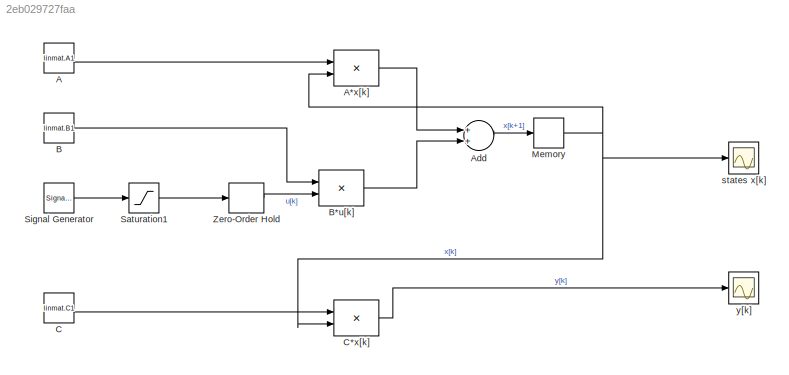
MODEL slx_2eb029727faa
KIND model
CONFIG AbsTol = auto
CONFIG EnableMultiTasking = off
CONFIG FixedStep = auto
CONFIG InitFcn = lindiscrmodel\n
CONFIG MaxStep = auto
CONFIG MinStep = auto
CONFIG RelTol = 1e-3
CONFIG SampleTimeConstraint = Unconstrained
CONFIG Solver = VariableStepAuto
CONFIG SolverName = VariableStepAuto
CONFIG StartTime = 0.0
CONFIG StopTime = 30
BLOCK [Constant] A
  SampleTime = Ts
  Value = linmat.A1
BLOCK [Product] A*x[k]
  InputSameDT = off
  Multiplication = Matrix(*)
  OutDataTypeStr = Inherit: Inherit via internal rule
  Ports = [2, 1]
  RndMeth = Floor
  SaturateOnIntegerOverflow = off
BLOCK [Sum] Add
  InputSameDT = off
  OutDataTypeStr = Inherit: Inherit via internal rule
  Ports = [2, 1]
  SaturateOnIntegerOverflow = off
BLOCK [Constant] B
  SampleTime = Ts
  Value = linmat.B1
BLOCK [Product] B*u[k]
  InputSameDT = off
  Multiplication = Matrix(*)
  OutDataTypeStr = Inherit: Inherit via internal rule
  Ports = [2, 1]
  RndMeth = Floor
  SaturateOnIntegerOverflow = off
BLOCK [Constant] C
  SampleTime = Ts
  Value = linmat.C1
BLOCK [Product] C*x[k]
  InputSameDT = off
  Multiplication = Matrix(*)
  OutDataTypeStr = Inherit: Inherit via internal rule
  Ports = [2, 1]
  RndMeth = Floor
  SaturateOnIntegerOverflow = off
BLOCK [Memory] Memory
  InitialCondition = [0;0;0;0]
BLOCK [Saturate] Saturation1
  InputPortMap = u0
  LowerLimit = -1
  Ports = [1, 1]
  UpperLimit = 1
BLOCK [SignalGenerator] Signal Generator
  Amplitude = 0.3
  Ports = [0, 1]
  WaveForm = square
BLOCK [ZeroOrderHold] Zero-Order Hold
  SampleTime = Ts
BLOCK [Scope] states x[k]
  Floating = off
  NumInputPorts = 1
  Ports = [1]
  ScopeSpecificationString = Simulink.scopes.TimeScopeBlockCfg('CurrentConfiguration', extmgr.ConfigurationSet(extmgr.Configuration('Core','General UI',true),extmgr.Configuration('Core','Source UI',true),extmgr.Configuration('Sources','WiredSimulink',true,'DataLoggingVariableName','ScopeData2'),extmgr.Configuration('Visuals','Time Domain',true,'SerializedDisplays',{struct('MinYLimReal','-4.99135','MaxYLimReal','5.38955','YLab...<+1423ch>
BLOCK [Scope] y[k]
  Floating = off
  NumInputPorts = 1
  Ports = [1]
  ScopeSpecificationString = Simulink.scopes.TimeScopeBlockCfg('CurrentConfiguration', extmgr.ConfigurationSet(extmgr.Configuration('Core','General UI',true),extmgr.Configuration('Core','Source UI',true),extmgr.Configuration('Sources','WiredSimulink',true,'DataLoggingVariableName','ScopeData4'),extmgr.Configuration('Visuals','Time Domain',true,'SerializedDisplays',{struct('MinYLimReal','-1.06647','MaxYLimReal','1.17746','YLab...<+1407ch>
LINE A*x[k]:1 -> Add:1
LINE A:1 -> A*x[k]:1
LINE Add:1 -> Memory:1
LINE B*u[k]:1 -> Add:2
LINE B:1 -> B*u[k]:1
LINE C*x[k]:1 -> y[k]:1
LINE C:1 -> C*x[k]:1
NET Memory:1 -> A*x[k]:2, C*x[k]:2, states x[k]:1
LINE Saturation1:1 -> Zero-Order Hold:1
LINE Signal Generator:1 -> Saturation1:1
LINE Zero-Order Hold:1 -> B*u[k]:2
note: NET lines group one-source signal fan-out (src -> all destinations, sorted); 1:1 wires keep LINE
